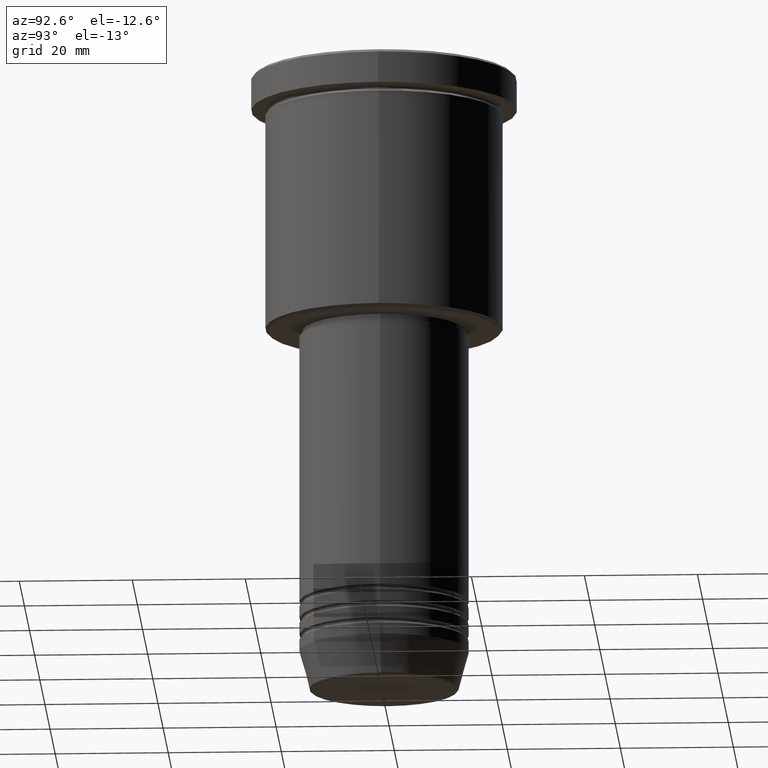
[diagram: clean part render]
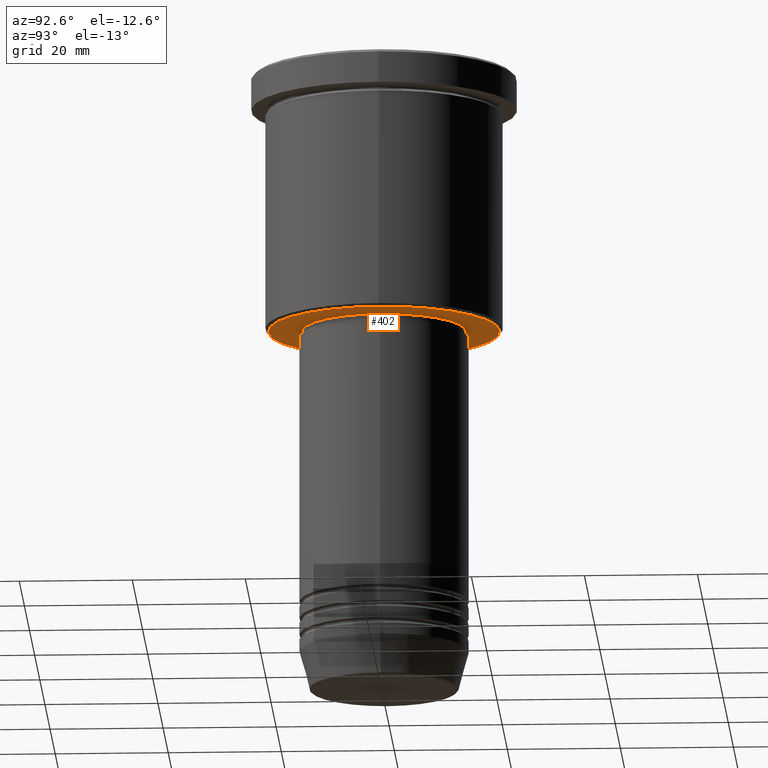
[diagram: same view with one face highlighted and labeled with its STEP entity id]
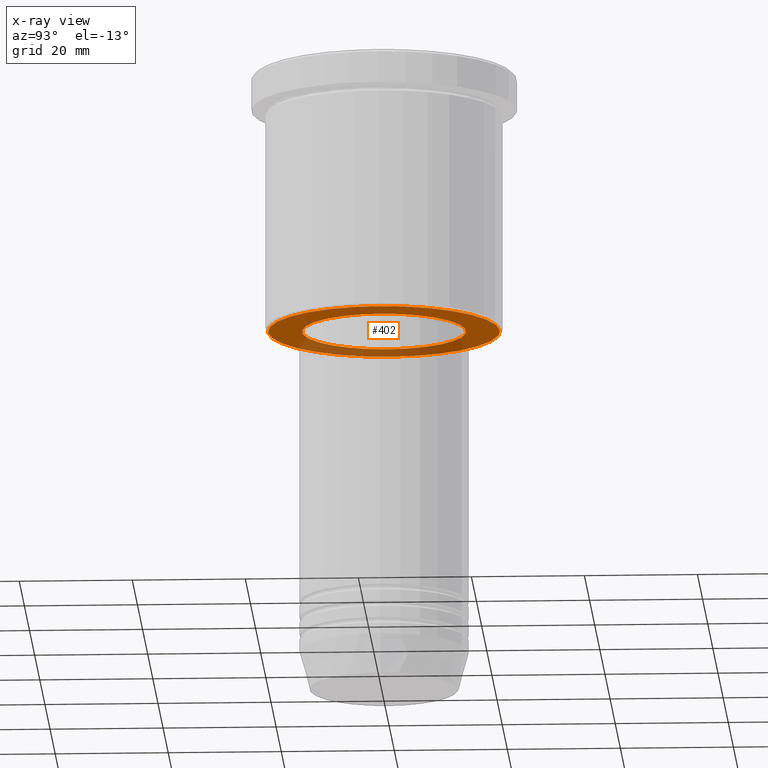
[diagram: x-ray of the same camera — body ghosted, the highlighted face saturated]
A machine part, auxiliary view. The second image highlights one B-rep face of the part: STEP entity #402.
The next image is the same camera in x-ray: the body ghosted, the highlighted face saturated — about 31% of this face is hidden behind the body in this view.
In plain terms, the highlighted planar face has unit normal (0, 0, -1).
Its self-contained STEP definition (entity closure, byte-faithful):
#152 = VERTEX_POINT ( 'NONE', #919 ) ;
#154 = FACE_BOUND ( 'NONE', #344, .T. ) ;
#166 = CIRCLE ( 'NONE', #929, 20.49999999999998934 ) ;
#171 = EDGE_CURVE ( 'NONE', #152, #482, #634, .T. ) ;
#185 = CIRCLE ( 'NONE', #1134, 20.49999999999998934 ) ;
#190 = ORIENTED_EDGE ( 'NONE', *, *, #424, .T. ) ;
#201 = ORIENTED_EDGE ( 'NONE', *, *, #309, .T. ) ;
#252 = DIRECTION ( 'NONE',  ( -1.000000000000000000, 0.000000000000000000, -0.000000000000000000 ) ) ;
#292 = DIRECTION ( 'NONE',  ( 0.000000000000000000, 0.000000000000000000, -1.000000000000000000 ) ) ;
#300 = DIRECTION ( 'NONE',  ( -0.000000000000000000, -0.000000000000000000, 1.000000000000000000 ) ) ;
#309 = EDGE_CURVE ( 'NONE', #389, #940, #185, .T. ) ;
#344 = EDGE_LOOP ( 'NONE', ( #973, #804 ) ) ;
#364 = DIRECTION ( 'NONE',  ( 0.000000000000000000, 0.000000000000000000, -1.000000000000000000 ) ) ;
#381 = CARTESIAN_POINT ( 'NONE',  ( 0.000000000000000000, 0.000000000000000000, -46.00000000000000000 ) ) ;
#389 = VERTEX_POINT ( 'NONE', #708 ) ;
#399 = DIRECTION ( 'NONE',  ( -1.000000000000000000, 0.000000000000000000, 0.000000000000000000 ) ) ;
#402 = ADVANCED_FACE ( 'NONE', ( #814, #154 ), #529, .T. ) ;
#424 = EDGE_CURVE ( 'NONE', #940, #389, #166, .T. ) ;
#482 = VERTEX_POINT ( 'NONE', #1001 ) ;
#487 = AXIS2_PLACEMENT_3D ( 'NONE', #1059, #1162, #252 ) ;
#523 = EDGE_CURVE ( 'NONE', #482, #152, #823, .T. ) ;
#529 = PLANE ( 'NONE',  #487 ) ;
#570 = DIRECTION ( 'NONE',  ( 1.000000000000000000, 0.000000000000000000, 0.000000000000000000 ) ) ;
#574 = CARTESIAN_POINT ( 'NONE',  ( 0.000000000000000000, 0.000000000000000000, -46.00000000000000000 ) ) ;
#593 = EDGE_LOOP ( 'NONE', ( #201, #190 ) ) ;
#634 = CIRCLE ( 'NONE', #1091, 14.49999999999999822 ) ;
#708 = CARTESIAN_POINT ( 'NONE',  ( 20.49999999999998934, 0.000000000000000000, -46.00000000000000000 ) ) ;
#755 = CARTESIAN_POINT ( 'NONE',  ( 0.000000000000000000, 0.000000000000000000, -46.00000000000000000 ) ) ;
#790 = AXIS2_PLACEMENT_3D ( 'NONE', #574, #1138, #1040 ) ;
#804 = ORIENTED_EDGE ( 'NONE', *, *, #171, .T. ) ;
#814 = FACE_OUTER_BOUND ( 'NONE', #593, .T. ) ;
#823 = CIRCLE ( 'NONE', #790, 14.49999999999999822 ) ;
#882 = DIRECTION ( 'NONE',  ( -1.000000000000000000, 0.000000000000000000, 0.000000000000000000 ) ) ;
#900 = CARTESIAN_POINT ( 'NONE',  ( 0.000000000000000000, 0.000000000000000000, -46.00000000000000000 ) ) ;
#919 = CARTESIAN_POINT ( 'NONE',  ( -14.49999999999999822, 1.775737858763662015E-15, -46.00000000000000000 ) ) ;
#929 = AXIS2_PLACEMENT_3D ( 'NONE', #381, #292, #399 ) ;
#940 = VERTEX_POINT ( 'NONE', #1064 ) ;
#973 = ORIENTED_EDGE ( 'NONE', *, *, #523, .T. ) ;
#1001 = CARTESIAN_POINT ( 'NONE',  ( 14.49999999999999822, 0.000000000000000000, -46.00000000000000000 ) ) ;
#1040 = DIRECTION ( 'NONE',  ( 1.000000000000000000, 0.000000000000000000, 0.000000000000000000 ) ) ;
#1059 = CARTESIAN_POINT ( 'NONE',  ( 0.000000000000000000, 21.00000000000000000, -46.00000000000000000 ) ) ;
#1064 = CARTESIAN_POINT ( 'NONE',  ( -20.49999999999998934, 2.541142108230757480E-15, -46.00000000000000000 ) ) ;
#1091 = AXIS2_PLACEMENT_3D ( 'NONE', #755, #300, #570 ) ;
#1134 = AXIS2_PLACEMENT_3D ( 'NONE', #900, #364, #882 ) ;
#1138 = DIRECTION ( 'NONE',  ( -0.000000000000000000, -0.000000000000000000, 1.000000000000000000 ) ) ;
#1162 = DIRECTION ( 'NONE',  ( 0.000000000000000000, 0.000000000000000000, -1.000000000000000000 ) ) ;